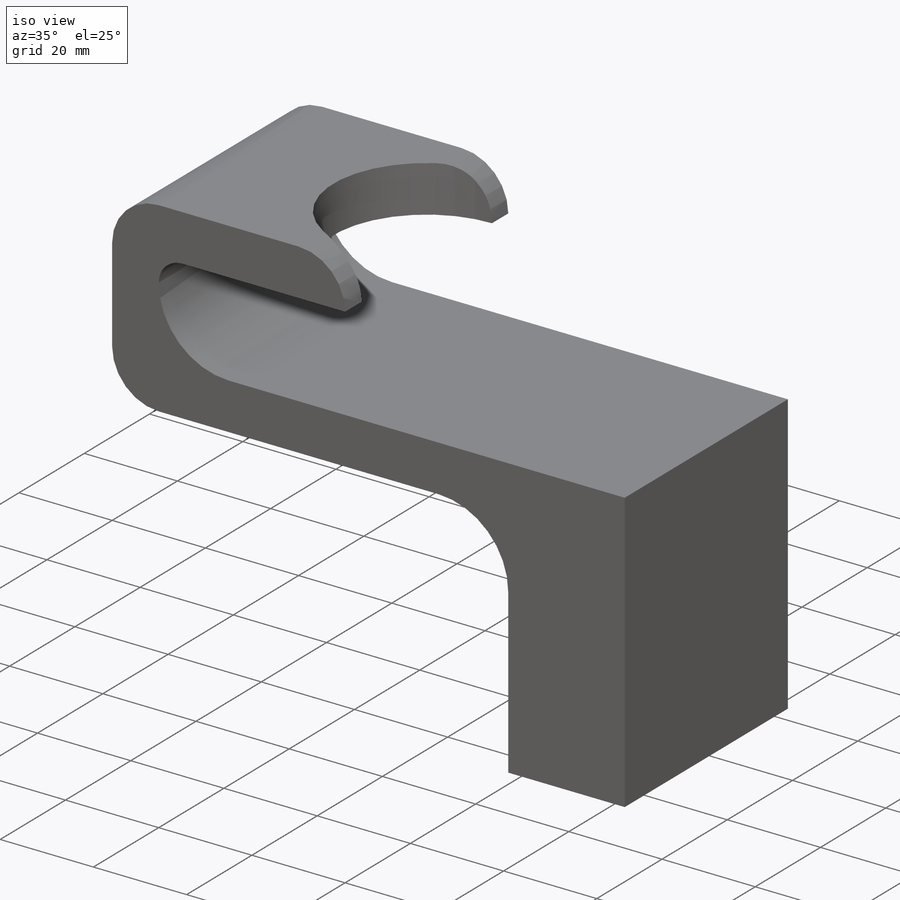
[diagram: iso view]
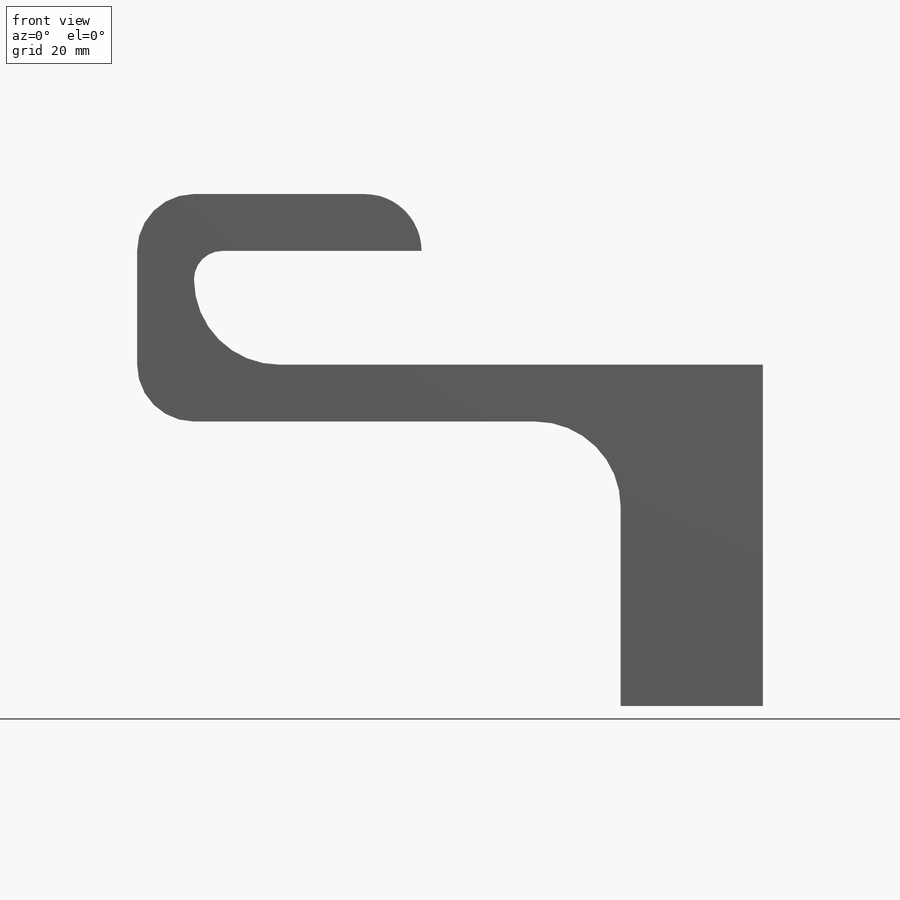
[diagram: front view]
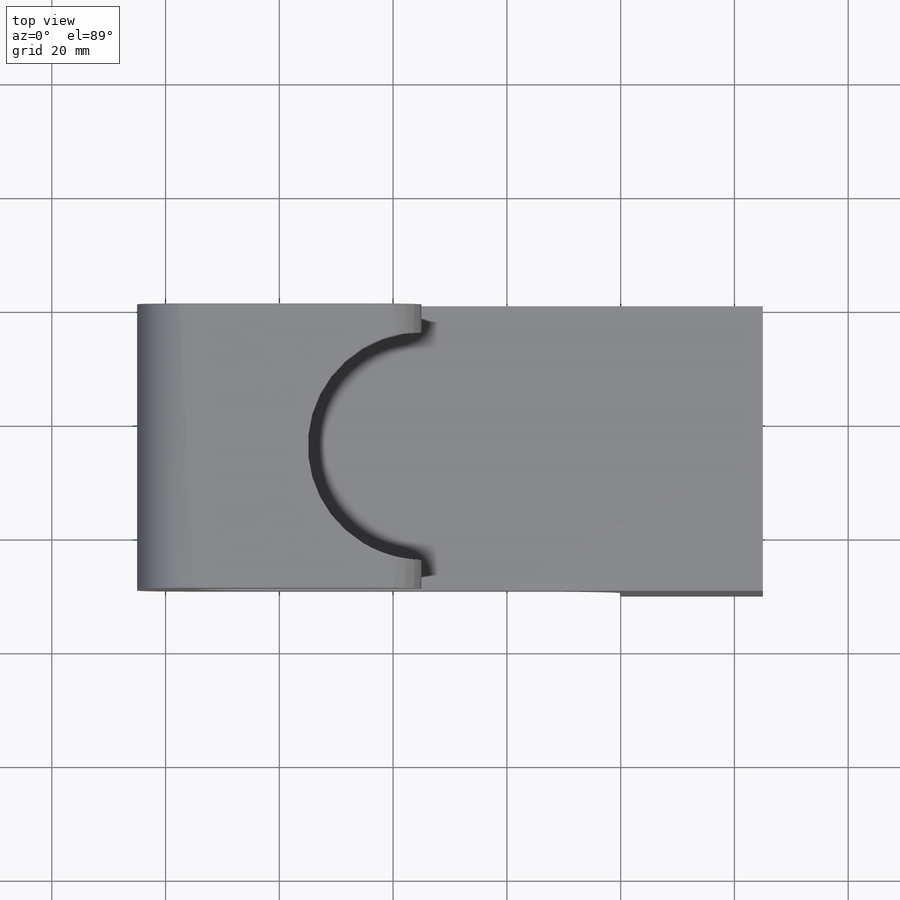
[diagram: top view]
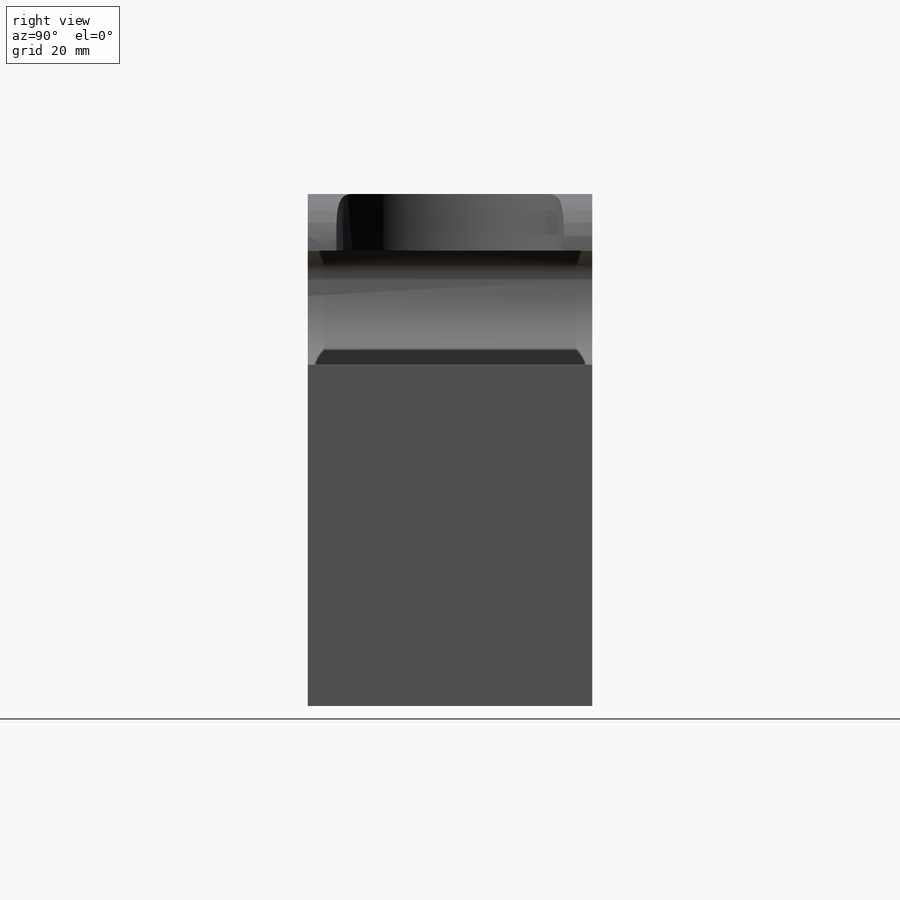
[diagram: right view]
SOLIDWORKS PART (.sldprt)
format: sldprt  version: not decoded by parser v0  size: 200,192 bytes
history: native  units: mm
features: fillet x4, plane x3, sketch x2, material x1, extrude x1, cut_extrude x1 (+10 scaffold rows collapsed)
feature tree (22):
  scaffold x10  (default folders/planes/origin — collapsed)
  material  "Matériau <non spécifié>"
  plane  "Plan de face"
  plane  "Plan de dessus"
  plane  "Plan de droite"
  sketch  "Esquisse2"  dims[D1=50.0mm D2=10.0mm D3=40.0mm D4=50.0mm D5=60.0mm D6=25.0mm D7=100.0mm D8=40.0mm]
  extrude  "Boss.-Extru.1"  Depth=50mm
  sketch  "Esquisse3"  dims[D1=40.0mm D2=25.0mm]
  cut_extrude  "Enlèv. mat.-Extru.1"  Depth=10mm
  fillet  "Congé1"  Radius=15mm
  fillet  "Congé2"  Radius=5mm
  fillet  "Congé4"  Radius=10mm
  fillet  "Congé5"  Radius=10mm
decode coverage: 8 of 8 modeling features carry decoded parameters
note: suppression state not decoded; provenance and decode notes live in map.json
